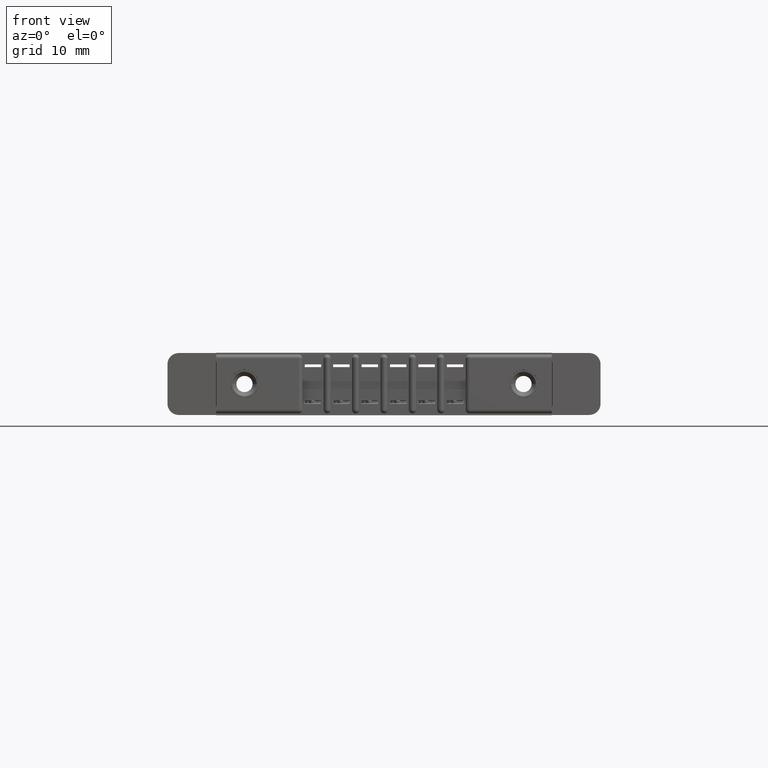
[diagram: clean part render]
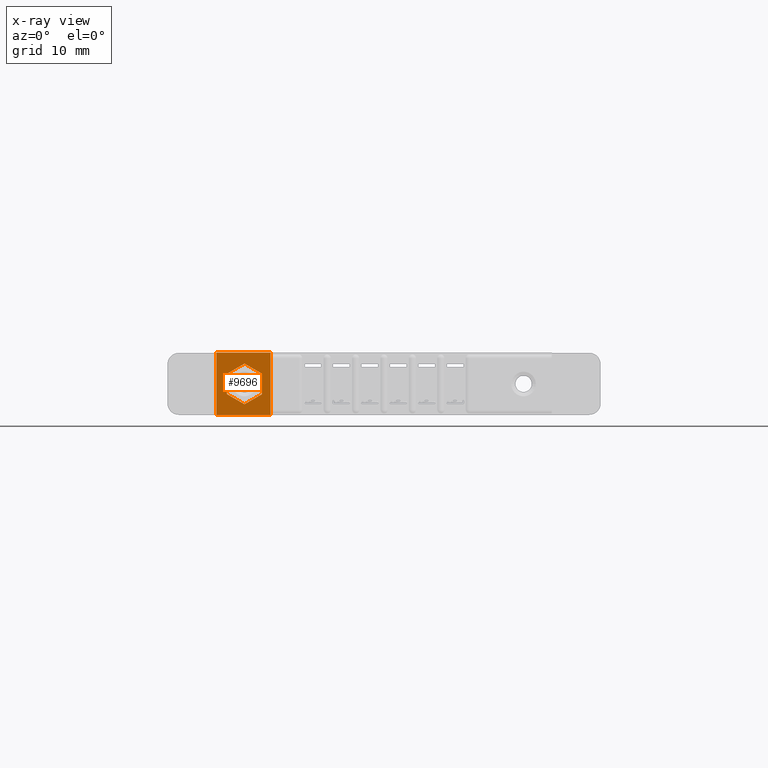
[diagram: x-ray — body ghosted, one internal face saturated and labeled with its STEP entity id]
A machine part, front view, then the same camera in x-ray: the body is ghosted and one INTERNAL B-rep face — a face not visible from any outside direction — is saturated and labeled: STEP entity #9696.
In plain terms, the highlighted planar face has unit normal (0, 1, 0).
Its self-contained STEP definition (entity closure, byte-faithful):
#60 = CARTESIAN_POINT ( 'NONE',  ( 0.2979999999999999900, 0.2499999999999999700, 0.0000000000000000000 ) ) ;
#103 = VERTEX_POINT ( 'NONE', #7136 ) ;
#301 = VECTOR ( 'NONE', #4032, 39.37007874015748900 ) ;
#437 = VECTOR ( 'NONE', #10442, 39.37007874015748100 ) ;
#627 = EDGE_LOOP ( 'NONE', ( #10830, #2985, #8015, #9839, #7534, #7878 ) ) ;
#743 = VERTEX_POINT ( 'NONE', #2441 ) ;
#780 = VECTOR ( 'NONE', #8293, 39.37007874015748900 ) ;
#828 = DIRECTION ( 'NONE',  ( 1.000000000000000000, -0.0000000000000000000, 0.0000000000000000000 ) ) ;
#923 = EDGE_CURVE ( 'NONE', #8695, #103, #5412, .T. ) ;
#1014 = VECTOR ( 'NONE', #9473, 39.37007874015748900 ) ;
#1020 = CARTESIAN_POINT ( 'NONE',  ( 0.05850000000000036400, 0.2499999999999999700, -0.1157856990232010900 ) ) ;
#1080 = CARTESIAN_POINT ( 'NONE',  ( 0.2515000000000003900, 0.2499999999999999700, -0.1157856990232010600 ) ) ;
#1166 = CARTESIAN_POINT ( 'NONE',  ( 0.2980000000000001000, 0.2499999999999999700, -0.3430000000000000300 ) ) ;
#1345 = CARTESIAN_POINT ( 'NONE',  ( 0.05850000000000036400, 0.2499999999999999700, -0.1157856990232010900 ) ) ;
#1663 = CARTESIAN_POINT ( 'NONE',  ( 0.0000000000000000000, 0.2499999999999999700, -0.3430000000000000300 ) ) ;
#1742 = LINE ( 'NONE', #2181, #301 ) ;
#1824 = VERTEX_POINT ( 'NONE', #8255 ) ;
#2067 = VERTEX_POINT ( 'NONE', #1166 ) ;
#2094 = CARTESIAN_POINT ( 'NONE',  ( 0.1550000000000003900, 0.2499999999999999700, -0.2829286019535977600 ) ) ;
#2181 = CARTESIAN_POINT ( 'NONE',  ( 0.1550000000000003900, 0.2499999999999999700, -0.06007139804640219300 ) ) ;
#2205 = EDGE_CURVE ( 'NONE', #743, #6052, #4350, .T. ) ;
#2271 = CARTESIAN_POINT ( 'NONE',  ( 0.0000000000000000000, 0.2499999999999999700, 0.0000000000000000000 ) ) ;
#2441 = CARTESIAN_POINT ( 'NONE',  ( 0.0000000000000000000, 0.2499999999999999700, -0.3430000000000000300 ) ) ;
#2598 = DIRECTION ( 'NONE',  ( 0.0000000000000000000, 0.0000000000000000000, 1.000000000000000000 ) ) ;
#2601 = DIRECTION ( 'NONE',  ( -1.000000000000000000, 0.0000000000000000000, 0.0000000000000000000 ) ) ;
#2693 = CARTESIAN_POINT ( 'NONE',  ( 0.2515000000000003900, 0.2499999999999999700, -0.2272143009767988700 ) ) ;
#2728 = CARTESIAN_POINT ( 'NONE',  ( 0.0000000000000000000, 0.2499999999999999700, 0.0000000000000000000 ) ) ;
#2857 = CARTESIAN_POINT ( 'NONE',  ( 0.1550000000000003900, 0.2499999999999999700, -0.06007139804640219300 ) ) ;
#2985 = ORIENTED_EDGE ( 'NONE', *, *, #923, .F. ) ;
#3119 = ORIENTED_EDGE ( 'NONE', *, *, #7858, .T. ) ;
#3337 = CARTESIAN_POINT ( 'NONE',  ( 0.0000000000000000000, 0.2499999999999999700, 0.0000000000000000000 ) ) ;
#3566 = EDGE_LOOP ( 'NONE', ( #3119, #11385, #6352, #4293 ) ) ;
#3725 = LINE ( 'NONE', #5671, #6679 ) ;
#3986 = DIRECTION ( 'NONE',  ( -0.8660254037844386000, 0.0000000000000000000, 0.5000000000000002200 ) ) ;
#4032 = DIRECTION ( 'NONE',  ( 0.8660254037844386000, 0.0000000000000000000, -0.4999999999999998300 ) ) ;
#4293 = ORIENTED_EDGE ( 'NONE', *, *, #2205, .T. ) ;
#4350 = LINE ( 'NONE', #3337, #8759 ) ;
#4365 = DIRECTION ( 'NONE',  ( -1.532286115149483600E-016, 0.0000000000000000000, 1.000000000000000000 ) ) ;
#4374 = LINE ( 'NONE', #2094, #10590 ) ;
#4552 = FACE_BOUND ( 'NONE', #627, .T. ) ;
#4648 = DIRECTION ( 'NONE',  ( 0.0000000000000000000, 1.000000000000000000, -0.0000000000000000000 ) ) ;
#5039 = VERTEX_POINT ( 'NONE', #9539 ) ;
#5202 = EDGE_CURVE ( 'NONE', #8372, #8695, #1742, .T. ) ;
#5412 = LINE ( 'NONE', #1080, #437 ) ;
#5476 = DIRECTION ( 'NONE',  ( 0.0000000000000000000, 0.0000000000000000000, 1.000000000000000000 ) ) ;
#5671 = CARTESIAN_POINT ( 'NONE',  ( 0.2979999999999999900, 0.2499999999999999700, 1.186721140104883800E-016 ) ) ;
#5796 = LINE ( 'NONE', #2728, #12010 ) ;
#5824 = EDGE_CURVE ( 'NONE', #5039, #1824, #4374, .T. ) ;
#6052 = VERTEX_POINT ( 'NONE', #2271 ) ;
#6160 = EDGE_CURVE ( 'NONE', #1824, #12129, #11463, .T. ) ;
#6352 = ORIENTED_EDGE ( 'NONE', *, *, #7212, .T. ) ;
#6548 = PLANE ( 'NONE',  #9971 ) ;
#6679 = VECTOR ( 'NONE', #7649, 39.37007874015748100 ) ;
#6686 = LINE ( 'NONE', #1663, #7568 ) ;
#7136 = CARTESIAN_POINT ( 'NONE',  ( 0.2515000000000003900, 0.2499999999999999700, -0.2272143009767988700 ) ) ;
#7212 = EDGE_CURVE ( 'NONE', #2067, #743, #6686, .T. ) ;
#7534 = ORIENTED_EDGE ( 'NONE', *, *, #6160, .F. ) ;
#7568 = VECTOR ( 'NONE', #2601, 39.37007874015748100 ) ;
#7649 = DIRECTION ( 'NONE',  ( 3.982285705049946100E-016, 0.0000000000000000000, -1.000000000000000000 ) ) ;
#7689 = VERTEX_POINT ( 'NONE', #60 ) ;
#7858 = EDGE_CURVE ( 'NONE', #6052, #7689, #5796, .T. ) ;
#7878 = ORIENTED_EDGE ( 'NONE', *, *, #5824, .F. ) ;
#8015 = ORIENTED_EDGE ( 'NONE', *, *, #5202, .F. ) ;
#8255 = CARTESIAN_POINT ( 'NONE',  ( 0.05850000000000037800, 0.2499999999999999700, -0.2272143009767988400 ) ) ;
#8293 = DIRECTION ( 'NONE',  ( -0.8660254037844386000, 0.0000000000000000000, -0.4999999999999998300 ) ) ;
#8302 = CARTESIAN_POINT ( 'NONE',  ( 0.0000000000000000000, 0.2499999999999999700, 0.0000000000000000000 ) ) ;
#8372 = VERTEX_POINT ( 'NONE', #2857 ) ;
#8390 = EDGE_CURVE ( 'NONE', #7689, #2067, #3725, .T. ) ;
#8467 = VECTOR ( 'NONE', #4365, 39.37007874015748100 ) ;
#8492 = LINE ( 'NONE', #1020, #1014 ) ;
#8695 = VERTEX_POINT ( 'NONE', #9989 ) ;
#8759 = VECTOR ( 'NONE', #2598, 39.37007874015748100 ) ;
#9271 = EDGE_CURVE ( 'NONE', #103, #5039, #10945, .T. ) ;
#9473 = DIRECTION ( 'NONE',  ( 0.8660254037844386000, 0.0000000000000000000, 0.4999999999999998300 ) ) ;
#9539 = CARTESIAN_POINT ( 'NONE',  ( 0.1550000000000003900, 0.2499999999999999700, -0.2829286019535977600 ) ) ;
#9696 = ADVANCED_FACE ( 'NONE', ( #4552, #11790 ), #6548, .T. ) ;
#9839 = ORIENTED_EDGE ( 'NONE', *, *, #11539, .F. ) ;
#9971 = AXIS2_PLACEMENT_3D ( 'NONE', #8302, #4648, #5476 ) ;
#9989 = CARTESIAN_POINT ( 'NONE',  ( 0.2515000000000003900, 0.2499999999999999700, -0.1157856990232010600 ) ) ;
#10442 = DIRECTION ( 'NONE',  ( 3.064572230298965200E-016, 0.0000000000000000000, -1.000000000000000000 ) ) ;
#10590 = VECTOR ( 'NONE', #3986, 39.37007874015747400 ) ;
#10830 = ORIENTED_EDGE ( 'NONE', *, *, #9271, .F. ) ;
#10890 = CARTESIAN_POINT ( 'NONE',  ( 0.05850000000000037800, 0.2499999999999999700, -0.2272143009767988400 ) ) ;
#10945 = LINE ( 'NONE', #2693, #780 ) ;
#11385 = ORIENTED_EDGE ( 'NONE', *, *, #8390, .T. ) ;
#11463 = LINE ( 'NONE', #10890, #8467 ) ;
#11539 = EDGE_CURVE ( 'NONE', #12129, #8372, #8492, .T. ) ;
#11790 = FACE_OUTER_BOUND ( 'NONE', #3566, .T. ) ;
#12010 = VECTOR ( 'NONE', #828, 39.37007874015748100 ) ;
#12129 = VERTEX_POINT ( 'NONE', #1345 ) ;